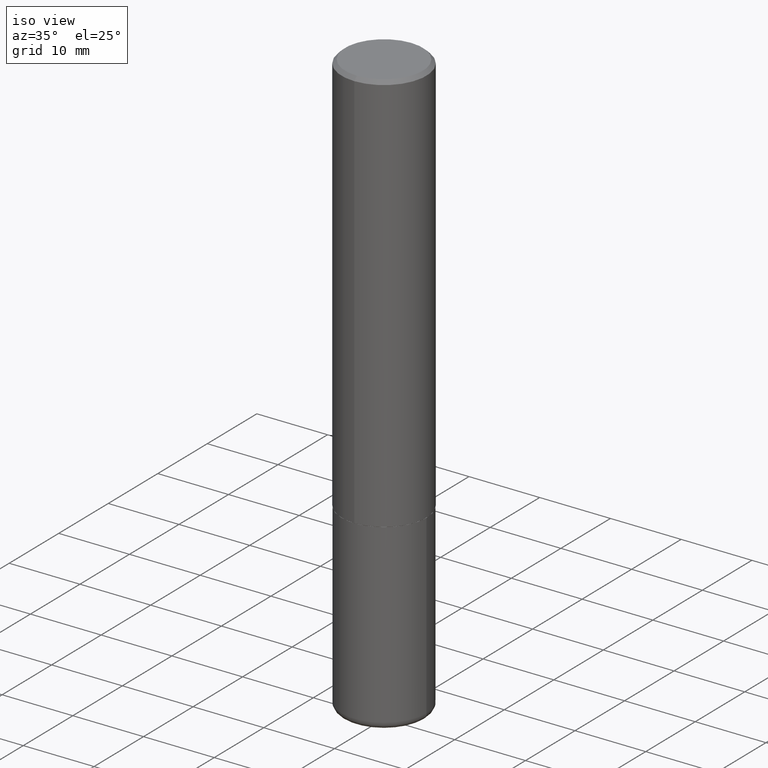
[diagram: clean part render]
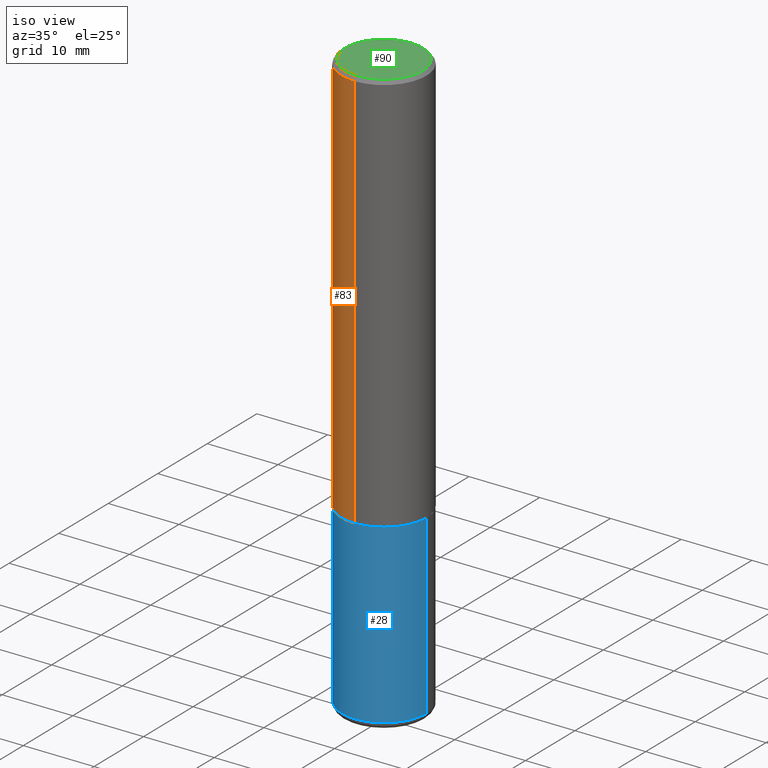
[diagram: same view with three faces highlighted in distinct colors, each labeled with its STEP entity id]
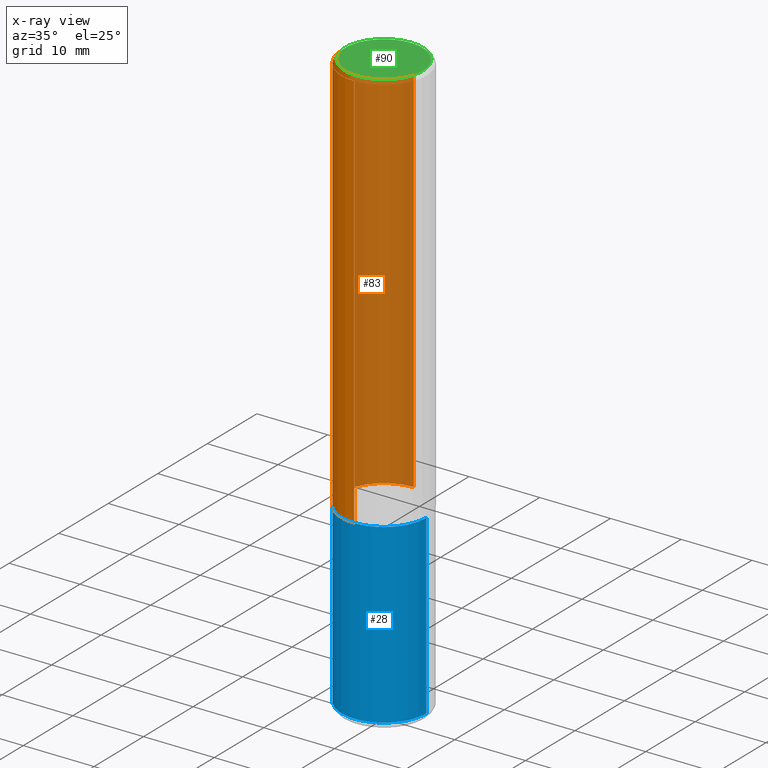
[diagram: x-ray of the same camera — body ghosted, the three highlighted faces saturated]
A machine part, iso view with three faces highlighted in distinct colors.
The next image is the same camera in x-ray (body ghosted, the three faces saturated) — at least one of them is partly hidden behind the body in this view.
Their STEP definitions:

[orange] entity #83 — the highlighted cylindrical surface (partial cylindrical patch) has radius 5.9995 mm, axis along (-0, 0, 1).
#1 = CARTESIAN_POINT ( 'NONE',  ( 5.484877041441908919E-29, -7.832535204696471708E-15, -2.243100000000000094 ) ) ;
#3 = CARTESIAN_POINT ( 'NONE',  ( -1.649375784469497117E-15, -0.2362000000000001598, 8.247714392355702416E-16 ) ) ;
#5 = DIRECTION ( 'NONE',  ( -6.982962677686265922E-15, -1.000000000000000000, 3.487819265831410167E-15 ) ) ;
#27 = LINE ( 'NONE', #163, #112 ) ;
#35 = DIRECTION ( 'NONE',  ( -2.445221809746292518E-29, 3.491835051801734702E-15, 1.000000000000000000 ) ) ;
#66 = CARTESIAN_POINT ( 'NONE',  ( -1.649375784469443080E-15, -0.2362000000000080979, -2.243099999999999206 ) ) ;
#79 = EDGE_CURVE ( 'NONE', #236, #388, #27, .T. ) ;
#83 = ADVANCED_FACE ( 'NONE', ( #193 ), #167, .T. ) ;
#112 = VECTOR ( 'NONE', #265, 39.37007874015748143 ) ;
#125 = EDGE_CURVE ( 'NONE', #218, #303, #390, .T. ) ;
#135 = DIRECTION ( 'NONE',  ( -6.982962677686265922E-15, -1.000000000000000000, 3.491835051801734308E-15 ) ) ;
#138 = DIRECTION ( 'NONE',  ( -6.982962677686265922E-15, -1.000000000000000000, 3.469747663417773058E-15 ) ) ;
#143 = EDGE_CURVE ( 'NONE', #388, #303, #272, .T. ) ;
#150 = CARTESIAN_POINT ( 'NONE',  ( 1.649375784469496920E-15, 0.2361999999999999933, -0.02000000000000087472 ) ) ;
#163 = CARTESIAN_POINT ( 'NONE',  ( 1.678301941865357577E-15, 0.2362000000000001598, -8.247714392355702416E-16 ) ) ;
#164 = CIRCLE ( 'NONE', #230, 0.2362000000000002709 ) ;
#167 = CYLINDRICAL_SURFACE ( 'NONE', #377, 0.2362000000000001598 ) ;
#173 = CARTESIAN_POINT ( 'NONE',  ( 4.890443619492597157E-31, -6.983670103603485970E-17, -0.02000000000000005246 ) ) ;
#183 = CARTESIAN_POINT ( 'NONE',  ( -1.620449627073635473E-15, -0.2362000000000001321, -0.01999999999999922673 ) ) ;
#193 = FACE_OUTER_BOUND ( 'NONE', #306, .T. ) ;
#203 = EDGE_CURVE ( 'NONE', #236, #218, #164, .T. ) ;
#206 = ORIENTED_EDGE ( 'NONE', *, *, #203, .T. ) ;
#211 = ORIENTED_EDGE ( 'NONE', *, *, #79, .F. ) ;
#218 = VERTEX_POINT ( 'NONE', #66 ) ;
#220 = ORIENTED_EDGE ( 'NONE', *, *, #143, .F. ) ;
#230 = AXIS2_PLACEMENT_3D ( 'NONE', #1, #395, #138 ) ;
#236 = VERTEX_POINT ( 'NONE', #361 ) ;
#239 = ORIENTED_EDGE ( 'NONE', *, *, #125, .T. ) ;
#246 = VECTOR ( 'NONE', #35, 39.37007874015748143 ) ;
#254 = AXIS2_PLACEMENT_3D ( 'NONE', #173, #336, #5 ) ;
#265 = DIRECTION ( 'NONE',  ( -2.445221809746292518E-29, 3.491835051801734702E-15, 1.000000000000000000 ) ) ;
#272 = CIRCLE ( 'NONE', #254, 0.2362000000000000766 ) ;
#303 = VERTEX_POINT ( 'NONE', #183 ) ;
#306 = EDGE_LOOP ( 'NONE', ( #211, #206, #239, #220 ) ) ;
#336 = DIRECTION ( 'NONE',  ( -2.445221809746292518E-29, 3.491835051801734308E-15, 1.000000000000000000 ) ) ;
#361 = CARTESIAN_POINT ( 'NONE',  ( 1.678301941865385779E-15, 0.2361999999999924715, -2.243100000000000982 ) ) ;
#377 = AXIS2_PLACEMENT_3D ( 'NONE', #414, #389, #135 ) ;
#388 = VERTEX_POINT ( 'NONE', #150 ) ;
#389 = DIRECTION ( 'NONE',  ( -2.445221809746292518E-29, 3.491835051801734308E-15, 1.000000000000000000 ) ) ;
#390 = LINE ( 'NONE', #3, #246 ) ;
#395 = DIRECTION ( 'NONE',  ( -2.445221809746292518E-29, 3.491835051801734308E-15, 1.000000000000000000 ) ) ;
#414 = CARTESIAN_POINT ( 'NONE',  ( 0.000000000000000000, 0.000000000000000000, 0.000000000000000000 ) ) ;

[blue] entity #28 — the highlighted cylindrical surface (partial cylindrical patch) has radius 5.9995 mm, axis along (-0, 0, 1).
#11 = DIRECTION ( 'NONE',  ( 1.000000000000000000, -6.982962677686269077E-15, 0.000000000000000000 ) ) ;
#14 = CARTESIAN_POINT ( 'NONE',  ( 0.2361999999999999933, -9.484609056967400443E-15, -2.244100000000000428 ) ) ;
#19 = CARTESIAN_POINT ( 'NONE',  ( 5.487876547960065873E-29, -7.835233272497903917E-15, -2.244100000000000428 ) ) ;
#28 = ADVANCED_FACE ( 'NONE', ( #417 ), #162, .T. ) ;
#30 = DIRECTION ( 'NONE',  ( -2.445468806185136597E-29, 3.491481338843145583E-15, 1.000000000000000000 ) ) ;
#39 = CARTESIAN_POINT ( 'NONE',  ( -0.2362000000000000210, -9.593247264321970832E-15, -3.228299999999999947 ) ) ;
#53 = LINE ( 'NONE', #314, #216 ) ;
#54 = ORIENTED_EDGE ( 'NONE', *, *, #178, .F. ) ;
#61 = CARTESIAN_POINT ( 'NONE',  ( 0.000000000000000000, 0.000000000000000000, 0.000000000000000000 ) ) ;
#67 = CARTESIAN_POINT ( 'NONE',  ( 7.894706947007477118E-29, -1.127154920618732880E-14, -3.228299999999999947 ) ) ;
#81 = EDGE_LOOP ( 'NONE', ( #54, #99, #270, #113 ) ) ;
#82 = DIRECTION ( 'NONE',  ( -2.445468806185136877E-29, 3.491481338843145188E-15, 1.000000000000000000 ) ) ;
#98 = AXIS2_PLACEMENT_3D ( 'NONE', #19, #153, #11 ) ;
#99 = ORIENTED_EDGE ( 'NONE', *, *, #248, .T. ) ;
#105 = AXIS2_PLACEMENT_3D ( 'NONE', #67, #330, #202 ) ;
#113 = ORIENTED_EDGE ( 'NONE', *, *, #359, .F. ) ;
#119 = AXIS2_PLACEMENT_3D ( 'NONE', #61, #30, #127 ) ;
#127 = DIRECTION ( 'NONE',  ( 1.000000000000000000, -6.982962677686266711E-15, 4.876176775795936353E-29 ) ) ;
#147 = LINE ( 'NONE', #338, #351 ) ;
#153 = DIRECTION ( 'NONE',  ( -2.445468806185136597E-29, 3.491481338843145583E-15, 1.000000000000000000 ) ) ;
#162 = CYLINDRICAL_SURFACE ( 'NONE', #119, 0.2361999999999999933 ) ;
#178 = EDGE_CURVE ( 'NONE', #181, #405, #147, .T. ) ;
#181 = VERTEX_POINT ( 'NONE', #39 ) ;
#202 = DIRECTION ( 'NONE',  ( 1.000000000000000000, -6.982962677686265133E-15, 0.000000000000000000 ) ) ;
#215 = CARTESIAN_POINT ( 'NONE',  ( -0.2361999999999999933, -7.875089297477259967E-15, -2.244100000000000428 ) ) ;
#216 = VECTOR ( 'NONE', #82, 39.37007874015748143 ) ;
#248 = EDGE_CURVE ( 'NONE', #181, #283, #285, .T. ) ;
#261 = EDGE_CURVE ( 'NONE', #283, #325, #53, .T. ) ;
#270 = ORIENTED_EDGE ( 'NONE', *, *, #261, .T. ) ;
#283 = VERTEX_POINT ( 'NONE', #403 ) ;
#285 = CIRCLE ( 'NONE', #105, 0.2361999999999999933 ) ;
#302 = DIRECTION ( 'NONE',  ( -2.445468806185136877E-29, 3.491481338843145188E-15, 1.000000000000000000 ) ) ;
#314 = CARTESIAN_POINT ( 'NONE',  ( 0.2361999999999999933, -1.649375784469496131E-15, 1.151752954443000088E-29 ) ) ;
#325 = VERTEX_POINT ( 'NONE', #14 ) ;
#330 = DIRECTION ( 'NONE',  ( -2.445468806185136597E-29, 3.491481338843145583E-15, 1.000000000000000000 ) ) ;
#338 = CARTESIAN_POINT ( 'NONE',  ( -0.2361999999999999933, 1.678301941865356591E-15, -1.161852468318208757E-29 ) ) ;
#351 = VECTOR ( 'NONE', #302, 39.37007874015748143 ) ;
#359 = EDGE_CURVE ( 'NONE', #405, #325, #374, .T. ) ;
#374 = CIRCLE ( 'NONE', #98, 0.2361999999999999933 ) ;
#403 = CARTESIAN_POINT ( 'NONE',  ( 0.2362000000000000210, -1.292092499065682375E-14, -3.228299999999999947 ) ) ;
#405 = VERTEX_POINT ( 'NONE', #215 ) ;
#417 = FACE_OUTER_BOUND ( 'NONE', #81, .T. ) ;

[green] entity #90 — the highlighted planar face has unit normal (0, -0, -1).
#21 = ORIENTED_EDGE ( 'NONE', *, *, #186, .T. ) ;
#31 = DIRECTION ( 'NONE',  ( 2.445221809746291958E-29, -3.491835051801734702E-15, -1.000000000000000000 ) ) ;
#45 = DIRECTION ( 'NONE',  ( -2.445221809746292518E-29, 3.491835051801734308E-15, 1.000000000000000000 ) ) ;
#65 = FACE_OUTER_BOUND ( 'NONE', #370, .T. ) ;
#89 = VERTEX_POINT ( 'NONE', #263 ) ;
#90 = ADVANCED_FACE ( 'NONE', ( #65 ), #200, .F. ) ;
#116 = CARTESIAN_POINT ( 'NONE',  ( 1.579546157692633621E-15, 0.2161999999999999478, -6.694880156558795861E-16 ) ) ;
#123 = CARTESIAN_POINT ( 'NONE',  ( -2.089361895350857775E-45, 2.983658608395124733E-31, 8.544672254365514246E-17 ) ) ;
#140 = AXIS2_PLACEMENT_3D ( 'NONE', #328, #31, #256 ) ;
#177 = CARTESIAN_POINT ( 'NONE',  ( -2.089361895350857775E-45, 2.983658608395124733E-31, 8.544672254365514246E-17 ) ) ;
#186 = EDGE_CURVE ( 'NONE', #348, #89, #279, .T. ) ;
#200 = PLANE ( 'NONE',  #140 ) ;
#205 = DIRECTION ( 'NONE',  ( -6.982962677686265922E-15, -1.000000000000000000, 3.491835051801733913E-15 ) ) ;
#256 = DIRECTION ( 'NONE',  ( 6.982962677686265922E-15, 1.000000000000000000, -3.491835051801734702E-15 ) ) ;
#263 = CARTESIAN_POINT ( 'NONE',  ( -1.551844647095920142E-15, -0.2161999999999999478, 8.403814607431897971E-16 ) ) ;
#278 = EDGE_CURVE ( 'NONE', #89, #348, #313, .T. ) ;
#279 = CIRCLE ( 'NONE', #358, 0.2161999999999999478 ) ;
#308 = DIRECTION ( 'NONE',  ( -6.982962677686265922E-15, -1.000000000000000000, 3.491835051801733913E-15 ) ) ;
#313 = CIRCLE ( 'NONE', #366, 0.2161999999999999478 ) ;
#328 = CARTESIAN_POINT ( 'NONE',  ( 1.509716530915770323E-15, 0.2161999999999999478, -7.122113769277070896E-16 ) ) ;
#334 = DIRECTION ( 'NONE',  ( -2.445221809746292518E-29, 3.491835051801734308E-15, 1.000000000000000000 ) ) ;
#348 = VERTEX_POINT ( 'NONE', #116 ) ;
#358 = AXIS2_PLACEMENT_3D ( 'NONE', #177, #334, #205 ) ;
#366 = AXIS2_PLACEMENT_3D ( 'NONE', #123, #45, #308 ) ;
#370 = EDGE_LOOP ( 'NONE', ( #21, #397 ) ) ;
#397 = ORIENTED_EDGE ( 'NONE', *, *, #278, .T. ) ;